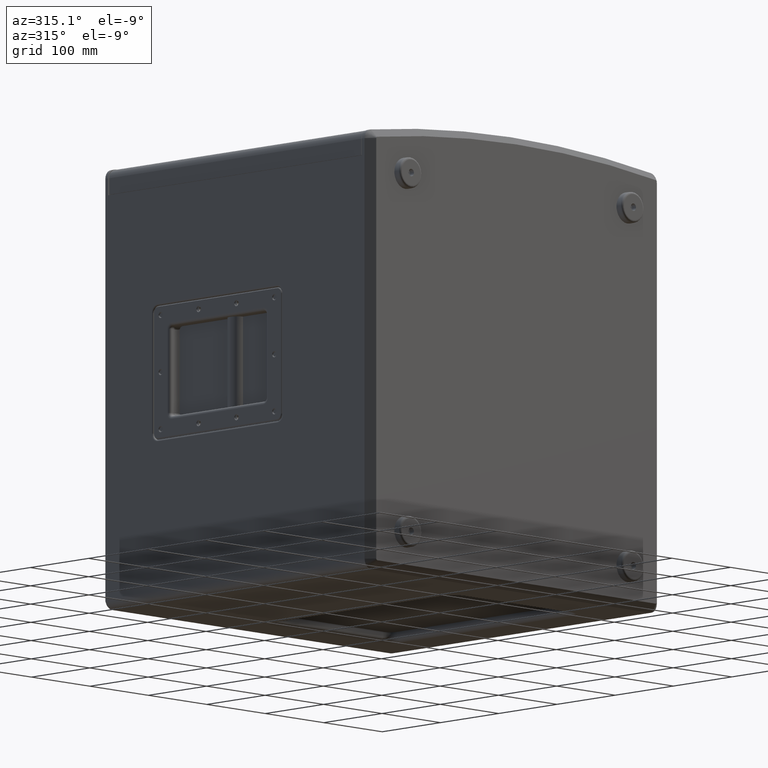
[diagram: clean part render]
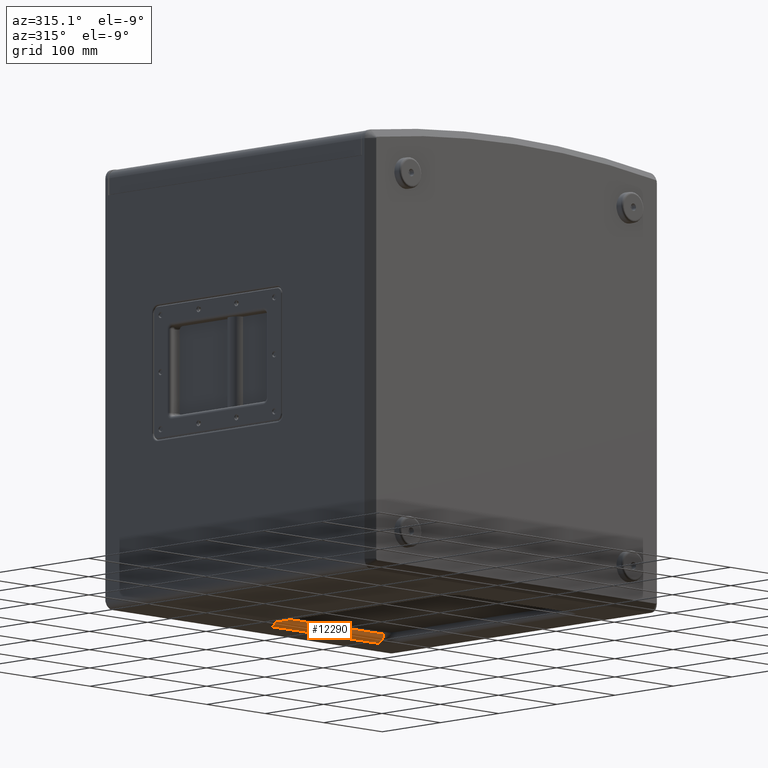
[diagram: same view with one face highlighted and labeled with its STEP entity id]
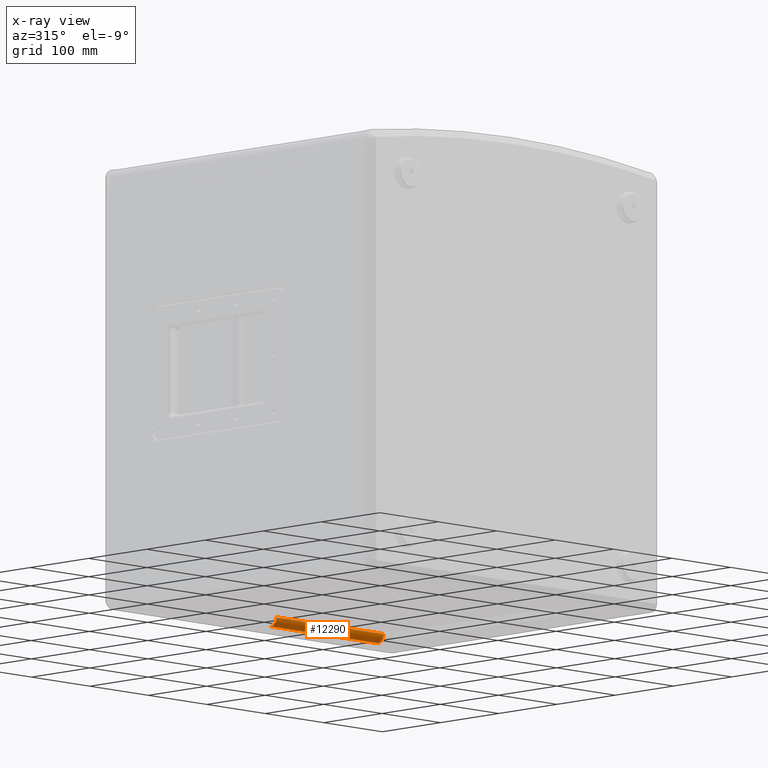
[diagram: x-ray of the same camera — body ghosted, the highlighted face saturated]
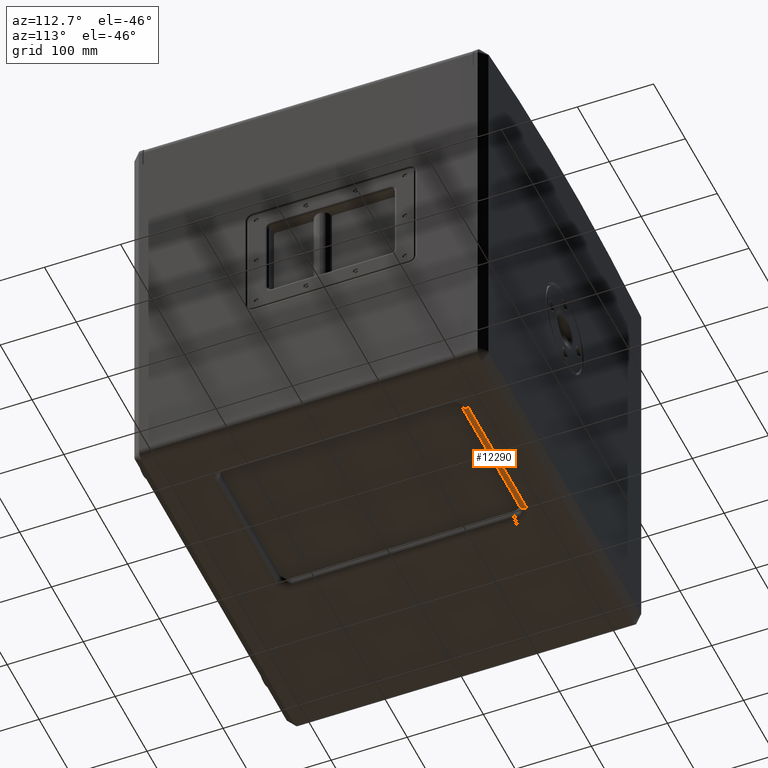
[diagram: same view with one face highlighted and labeled with its STEP entity id]
A machine part, auxiliary view. The second image highlights one B-rep face of the part: STEP entity #12290.
The next image is the same camera in x-ray: the body ghosted, the highlighted face saturated — about 0% of this face is hidden behind the body in this view.
A second angle (auxiliary view) of the same face is appended — the face is thin or edge-on in the first view.
In plain terms, the highlighted cylindrical surface (edge-blend (fillet) strip) has radius 10 mm, axis along (1, 0, -0).
Its self-contained STEP definition (entity closure, byte-faithful):
#665 = DIRECTION ( 'NONE',  ( -1.000000000000000000, -0.0000000000000000000, 0.0000000000000000000 ) ) ;
#1541 = DIRECTION ( 'NONE',  ( 0.0000000000000000000, 0.0000000000000000000, 1.000000000000000000 ) ) ;
#2226 = ORIENTED_EDGE ( 'NONE', *, *, #27266, .F. ) ;
#2672 = VECTOR ( 'NONE', #665, 1000.000000000000000 ) ;
#3149 = CARTESIAN_POINT ( 'NONE',  ( 171.5000000000000000, 167.7500000000000000, -269.9999999999999432 ) ) ;
#3235 = EDGE_CURVE ( 'NONE', #7184, #7496, #4594, .T. ) ;
#3587 = EDGE_LOOP ( 'NONE', ( #23926, #5129, #10210, #2226 ) ) ;
#4594 = CIRCLE ( 'NONE', #7330, 10.00000000000000888 ) ;
#5129 = ORIENTED_EDGE ( 'NONE', *, *, #8601, .F. ) ;
#5682 = LINE ( 'NONE', #18940, #17068 ) ;
#6637 = AXIS2_PLACEMENT_3D ( 'NONE', #8364, #17982, #1541 ) ;
#7086 = CARTESIAN_POINT ( 'NONE',  ( 0.0000000000000000000, 177.7500000000000284, -279.9999999999999432 ) ) ;
#7184 = VERTEX_POINT ( 'NONE', #11700 ) ;
#7330 = AXIS2_PLACEMENT_3D ( 'NONE', #19164, #9740, #35951 ) ;
#7496 = VERTEX_POINT ( 'NONE', #10527 ) ;
#8364 = CARTESIAN_POINT ( 'NONE',  ( 171.5000000000000000, 177.7500000000000284, -269.9999999999999432 ) ) ;
#8601 = EDGE_CURVE ( 'NONE', #7496, #20178, #5682, .T. ) ;
#8707 = AXIS2_PLACEMENT_3D ( 'NONE', #29483, #38843, #9647 ) ;
#9647 = DIRECTION ( 'NONE',  ( 0.0000000000000000000, 0.0000000000000000000, -1.000000000000000000 ) ) ;
#9740 = DIRECTION ( 'NONE',  ( -1.000000000000000000, 1.214306433183763783E-15, 0.0000000000000000000 ) ) ;
#10210 = ORIENTED_EDGE ( 'NONE', *, *, #3235, .F. ) ;
#10527 = CARTESIAN_POINT ( 'NONE',  ( -11.50000000000005151, 167.7500000000000000, -269.9999999999999432 ) ) ;
#11700 = CARTESIAN_POINT ( 'NONE',  ( -11.50000000000003908, 177.7500000000000284, -279.9999999999999432 ) ) ;
#12290 = ADVANCED_FACE ( 'NONE', ( #25863 ), #22467, .T. ) ;
#16192 = CIRCLE ( 'NONE', #6637, 10.00000000000000888 ) ;
#17068 = VECTOR ( 'NONE', #25297, 1000.000000000000000 ) ;
#17982 = DIRECTION ( 'NONE',  ( -1.000000000000000000, -0.0000000000000000000, -0.0000000000000000000 ) ) ;
#18940 = CARTESIAN_POINT ( 'NONE',  ( -11.50000000000005151, 167.7500000000000000, -269.9999999999999432 ) ) ;
#19164 = CARTESIAN_POINT ( 'NONE',  ( -11.50000000000003908, 177.7500000000000284, -269.9999999999999432 ) ) ;
#20178 = VERTEX_POINT ( 'NONE', #3149 ) ;
#22467 = CYLINDRICAL_SURFACE ( 'NONE', #8707, 10.00000000000000888 ) ;
#23926 = ORIENTED_EDGE ( 'NONE', *, *, #26315, .T. ) ;
#25297 = DIRECTION ( 'NONE',  ( 1.000000000000000000, 0.0000000000000000000, 0.0000000000000000000 ) ) ;
#25863 = FACE_OUTER_BOUND ( 'NONE', #3587, .T. ) ;
#26315 = EDGE_CURVE ( 'NONE', #40136, #20178, #16192, .T. ) ;
#27266 = EDGE_CURVE ( 'NONE', #40136, #7184, #37398, .T. ) ;
#29483 = CARTESIAN_POINT ( 'NONE',  ( -11.50000000000005151, 177.7500000000000284, -269.9999999999999432 ) ) ;
#35951 = DIRECTION ( 'NONE',  ( -1.214306433183763980E-15, -1.000000000000000000, 0.0000000000000000000 ) ) ;
#36121 = CARTESIAN_POINT ( 'NONE',  ( 171.5000000000000000, 177.7500000000000284, -279.9999999999999432 ) ) ;
#37398 = LINE ( 'NONE', #7086, #2672 ) ;
#38843 = DIRECTION ( 'NONE',  ( 1.000000000000000000, 0.0000000000000000000, -0.0000000000000000000 ) ) ;
#40136 = VERTEX_POINT ( 'NONE', #36121 ) ;